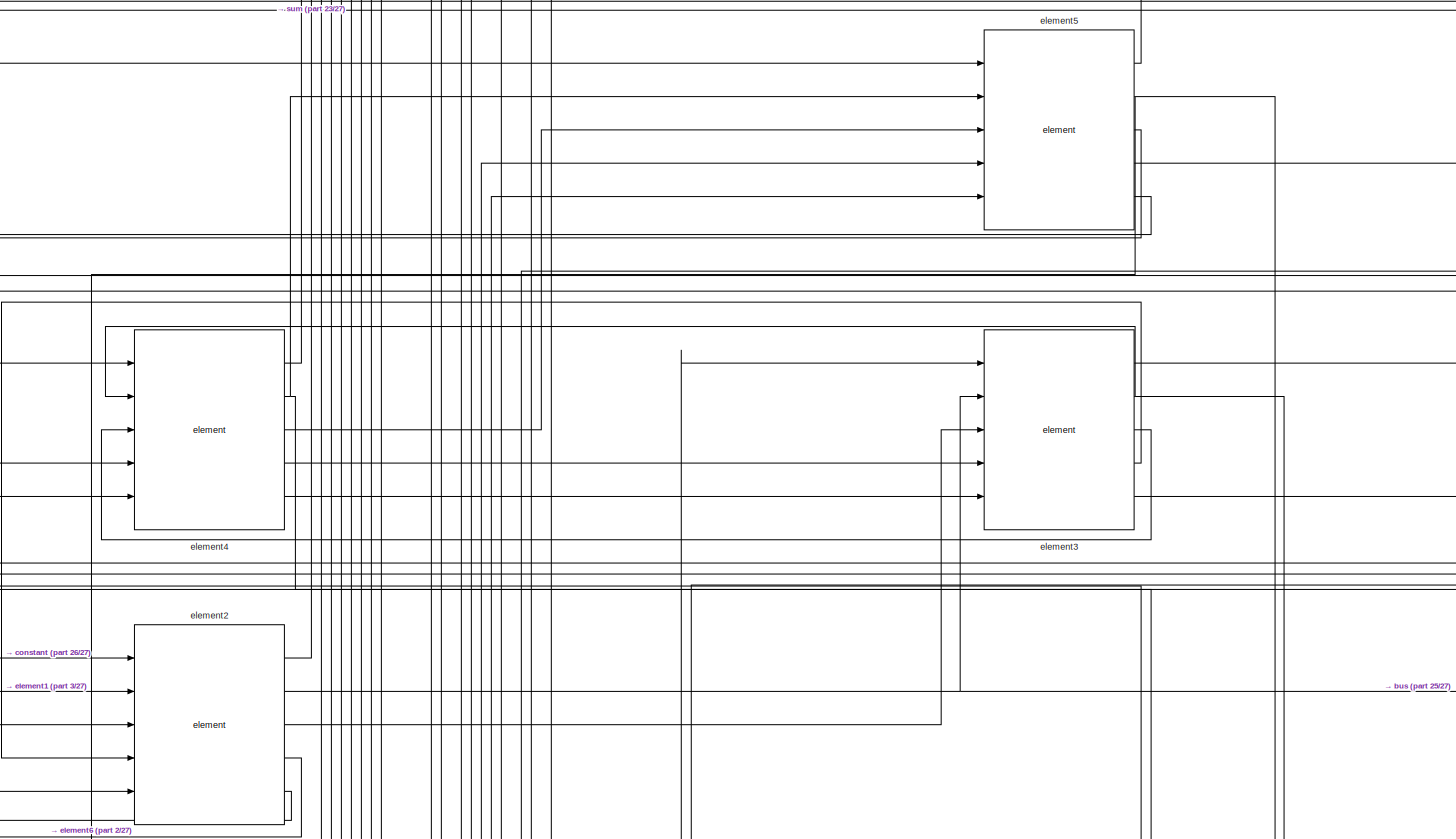
[diagram: root canvas - part 1/27, top center region]
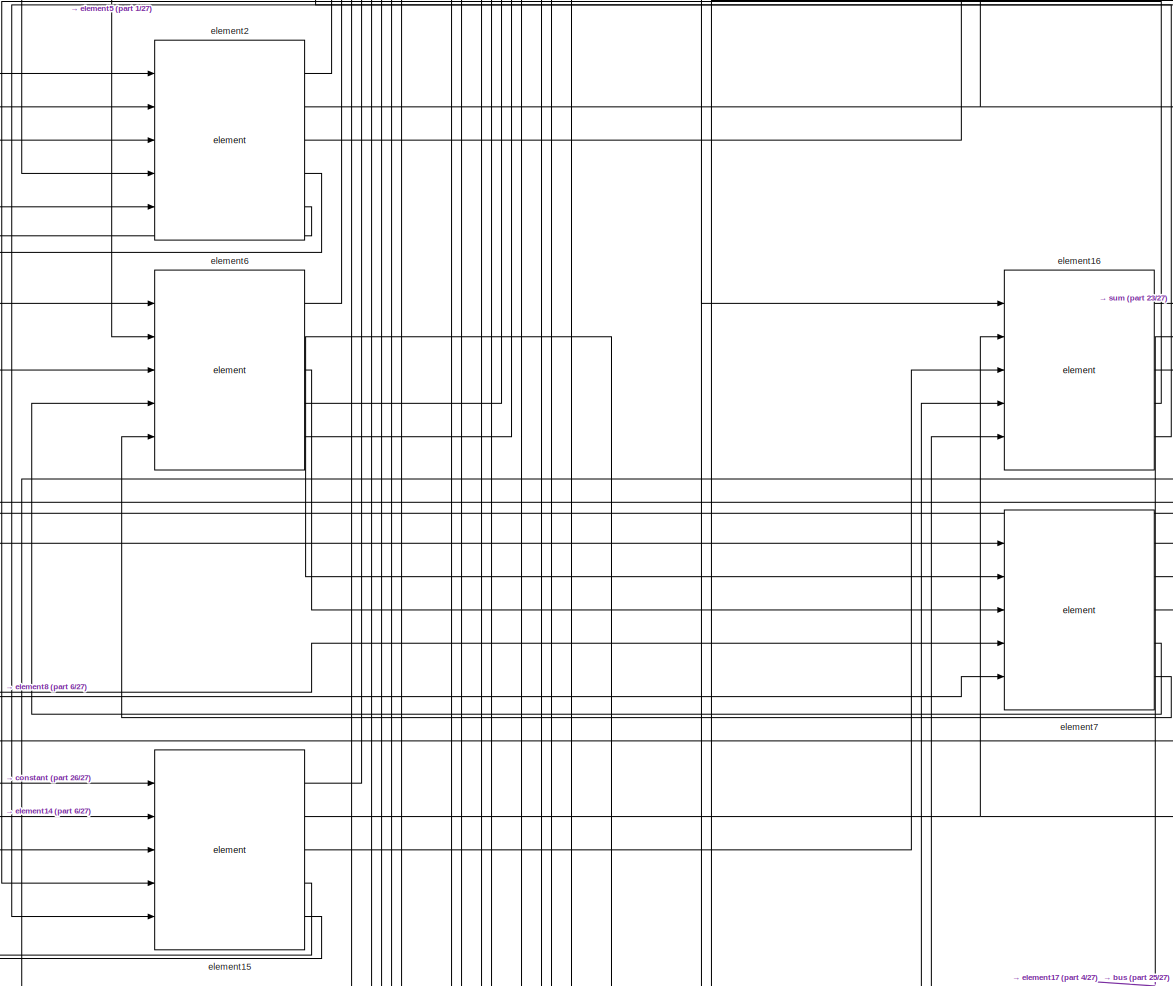
[diagram: root canvas - part 2/27, top center region]
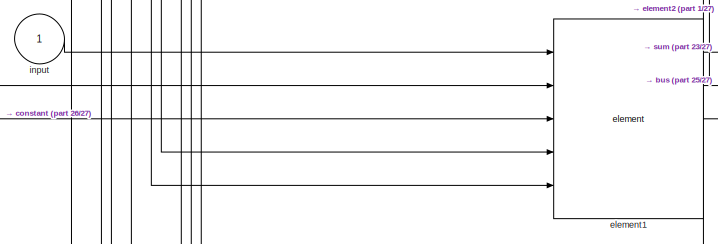
[diagram: root canvas - part 3/27, top left region]
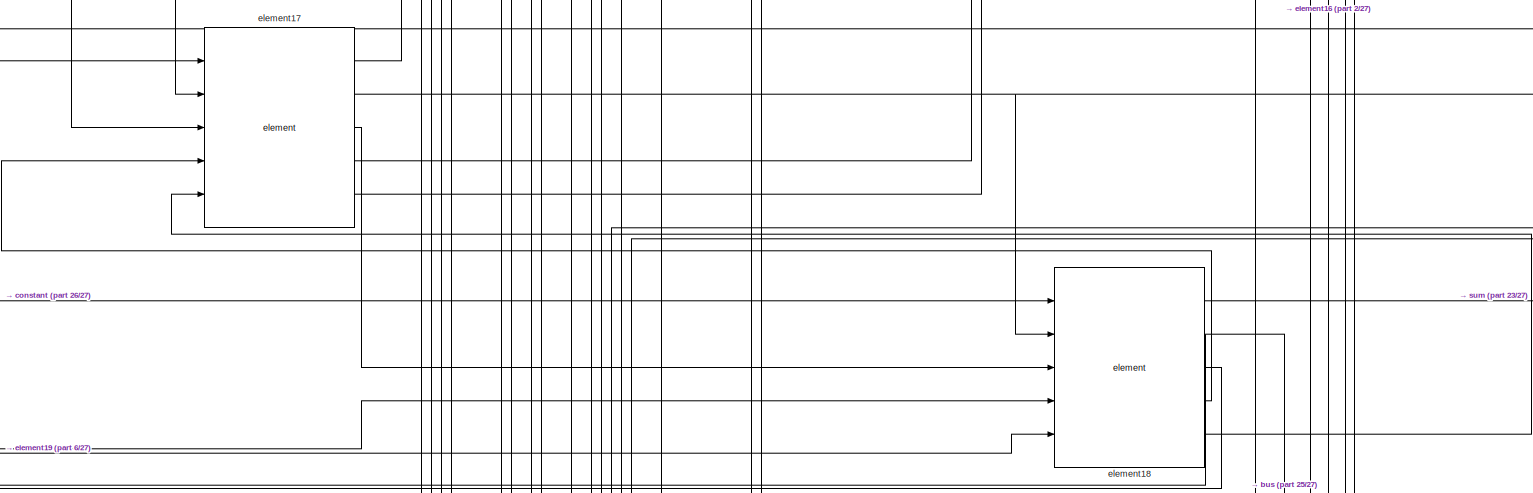
[diagram: root canvas - part 4/27, top center region]
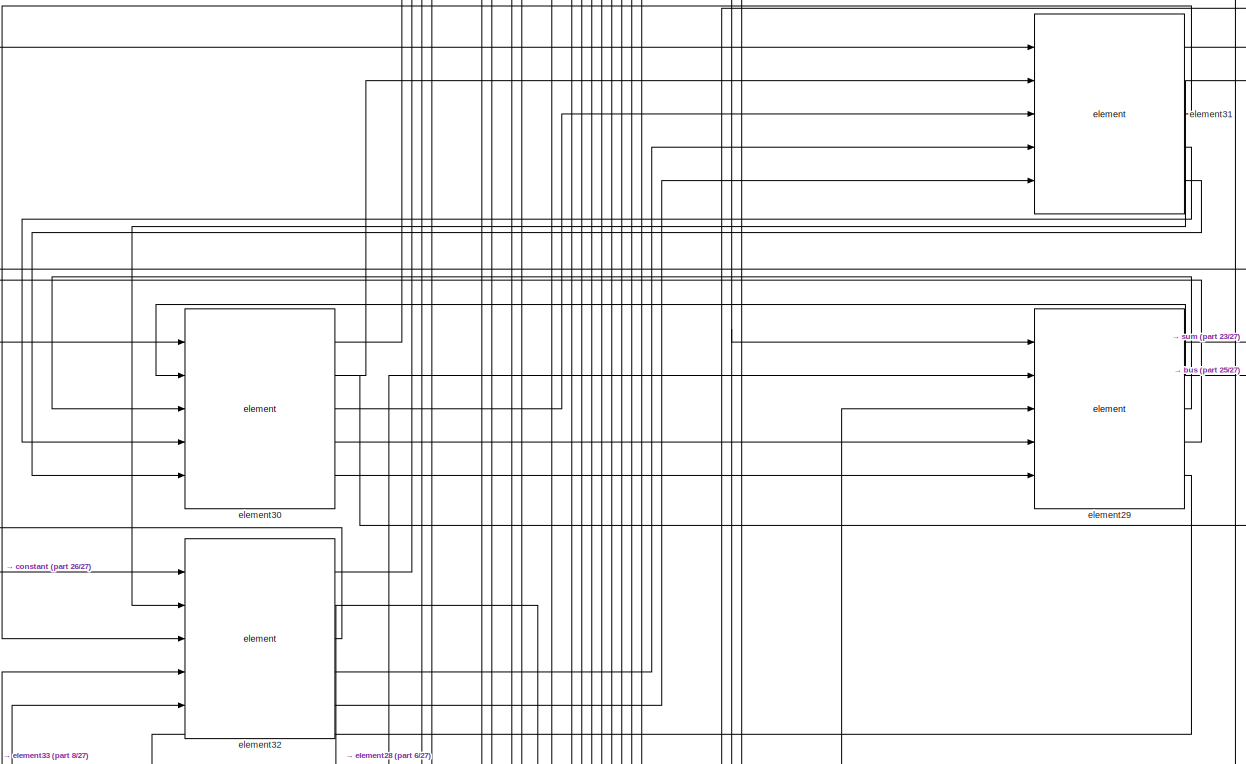
[diagram: root canvas - part 5/27, top center region]
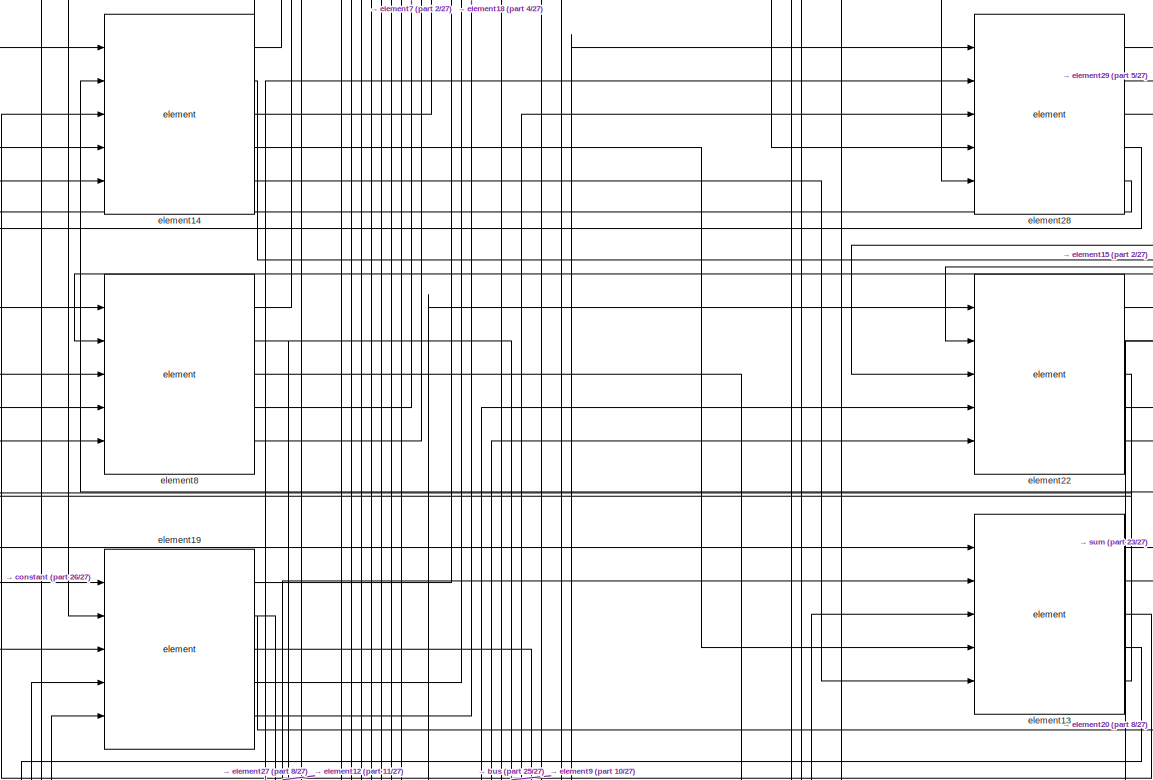
[diagram: root canvas - part 6/27, top center region]
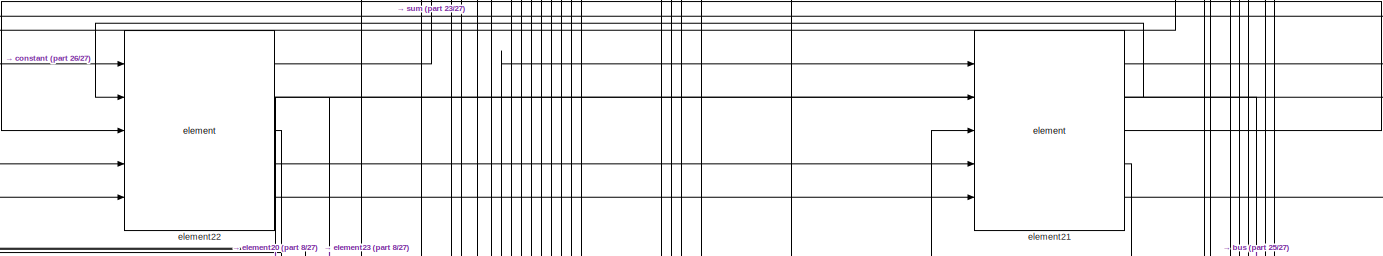
[diagram: root canvas - part 7/27, top center region]
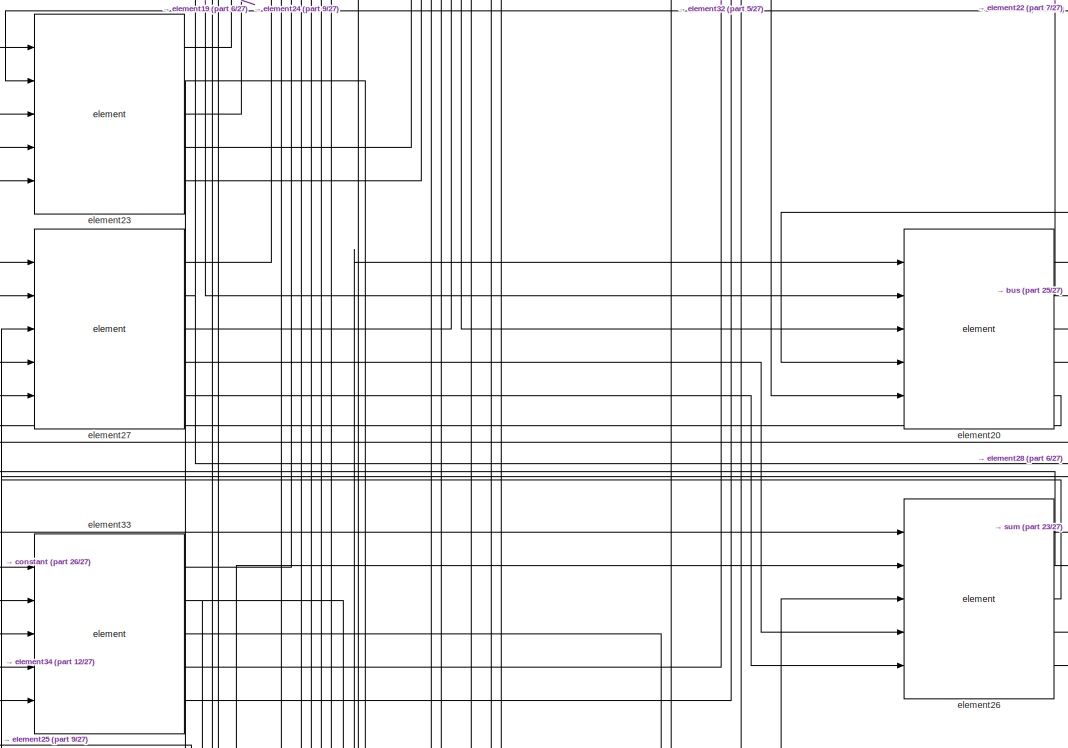
[diagram: root canvas - part 8/27, central region]
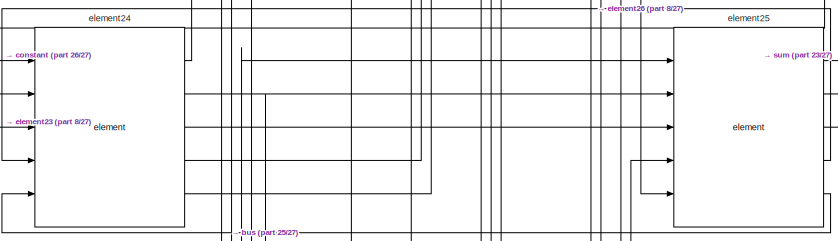
[diagram: root canvas - part 9/27, middle left region]
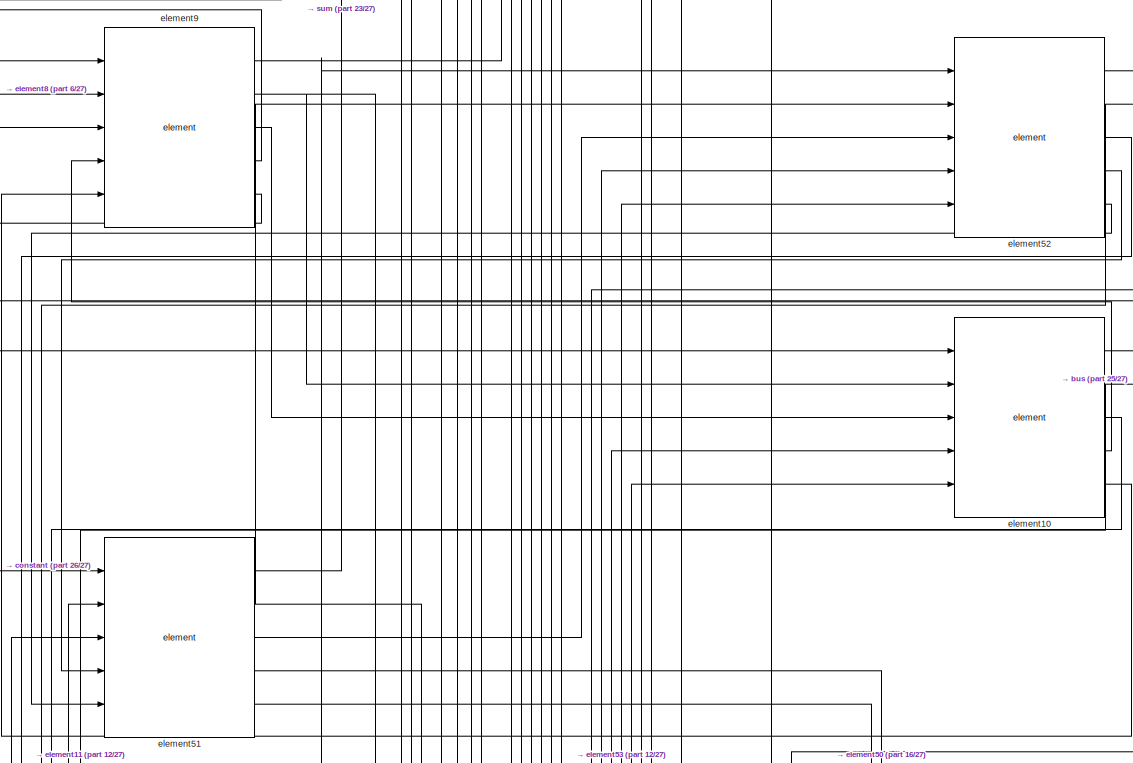
[diagram: root canvas - part 10/27, central region]
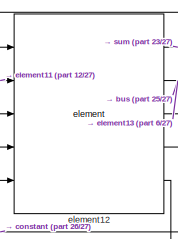
[diagram: root canvas - part 11/27, central region]
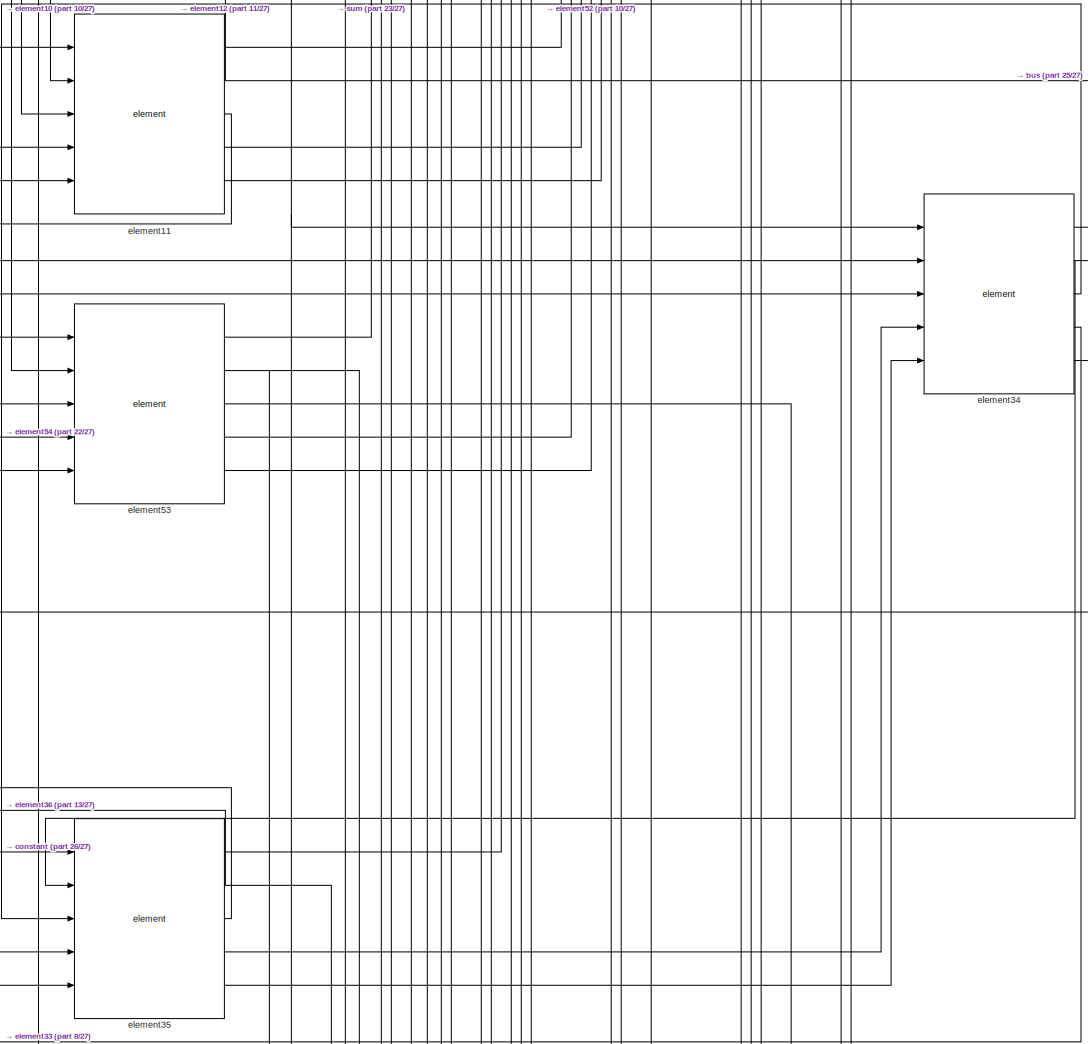
[diagram: root canvas - part 12/27, central region]
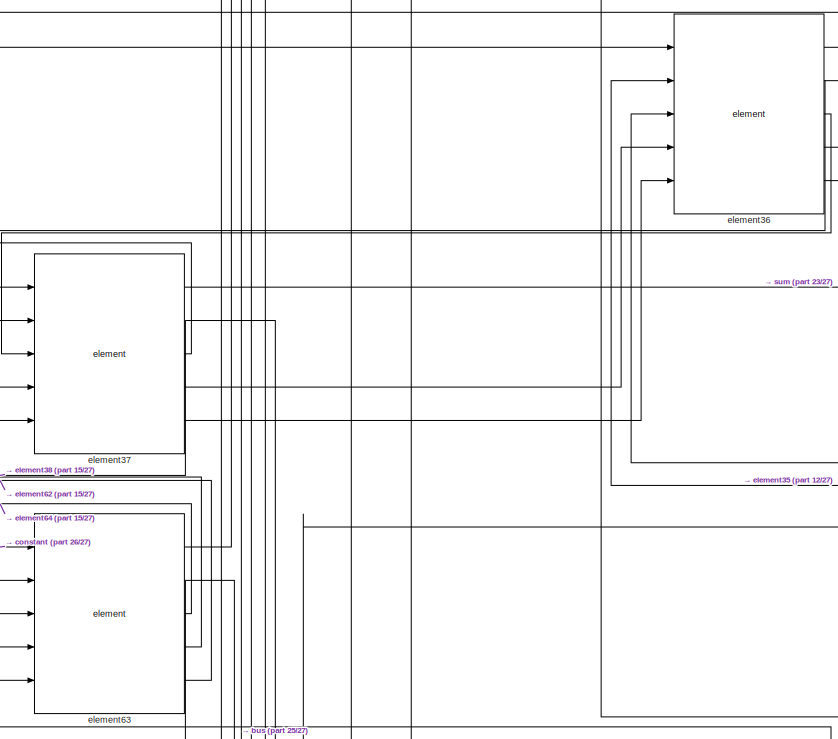
[diagram: root canvas - part 13/27, middle left region]
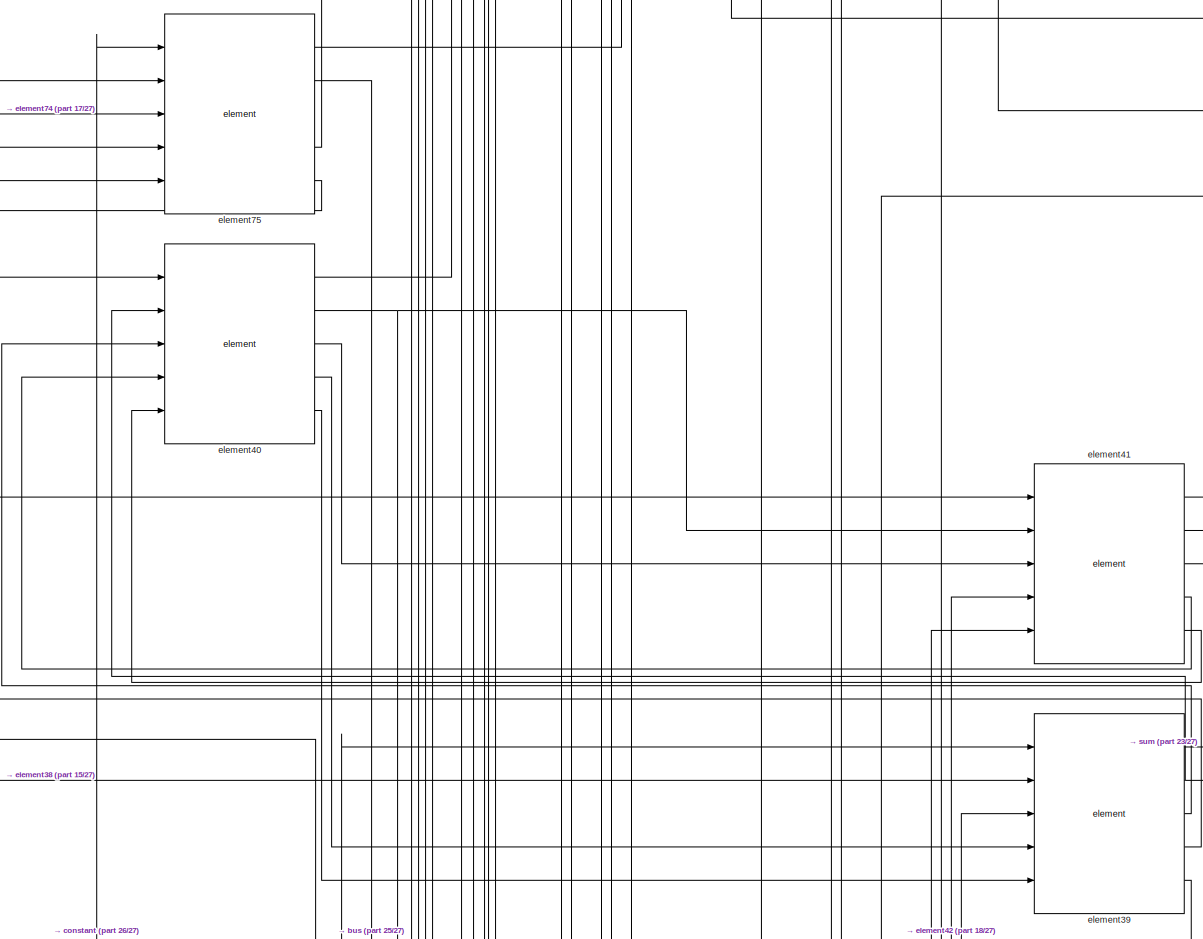
[diagram: root canvas - part 14/27, central region]
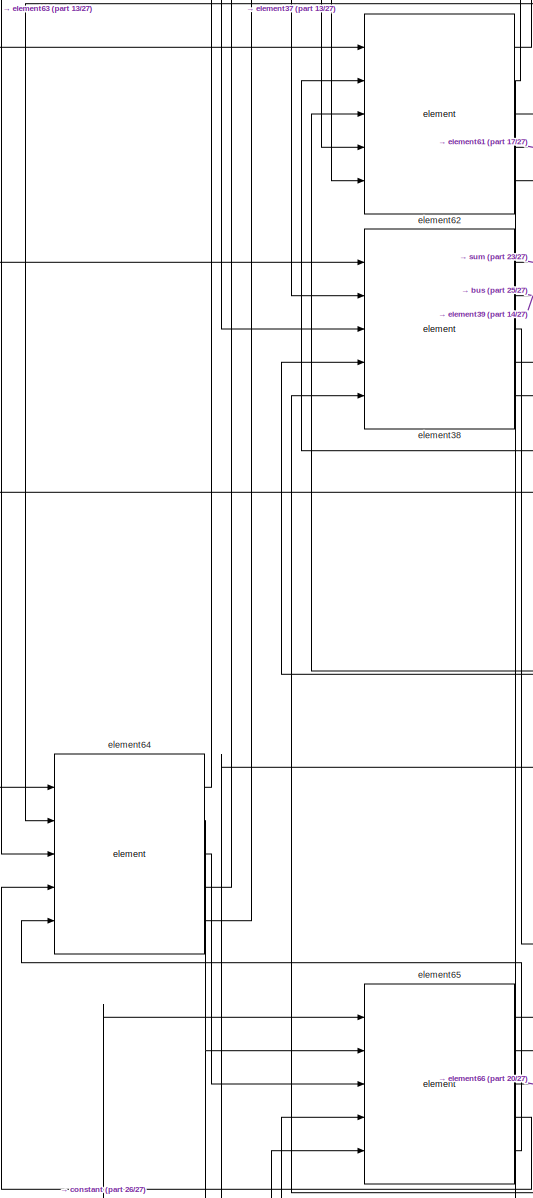
[diagram: root canvas - part 15/27, middle left region]
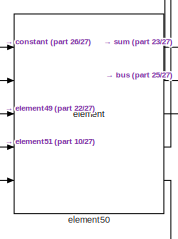
[diagram: root canvas - part 16/27, middle right region]
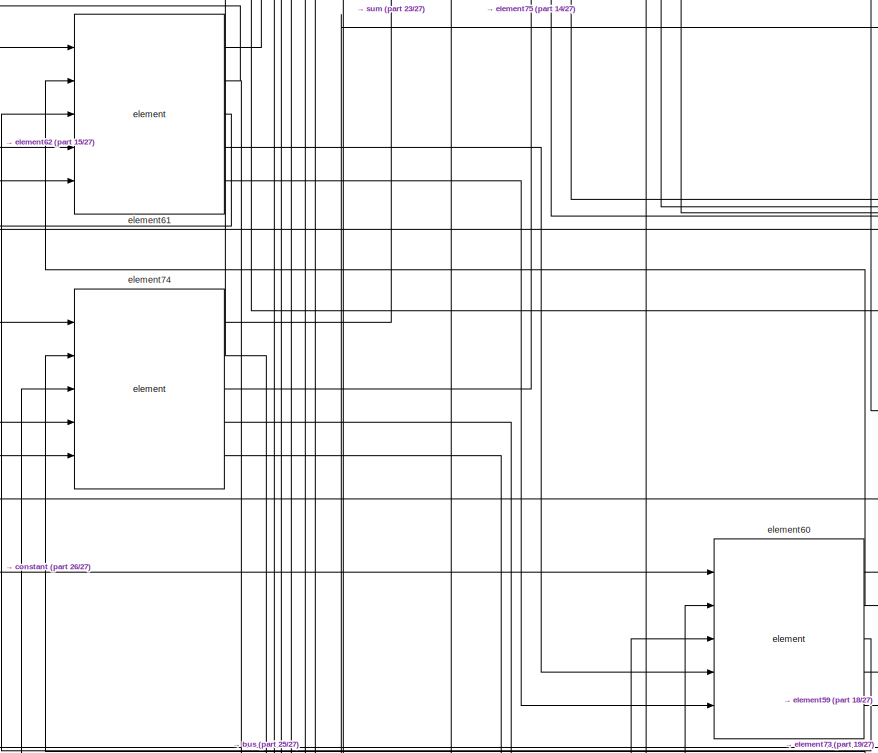
[diagram: root canvas - part 17/27, middle left region]
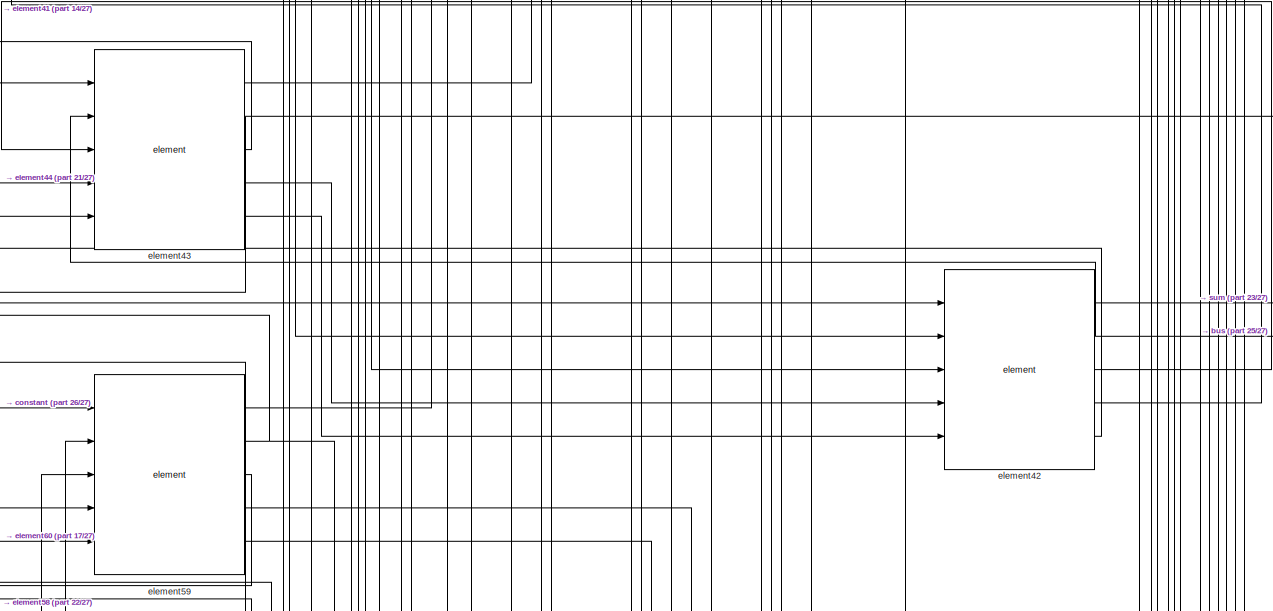
[diagram: root canvas - part 18/27, central region]
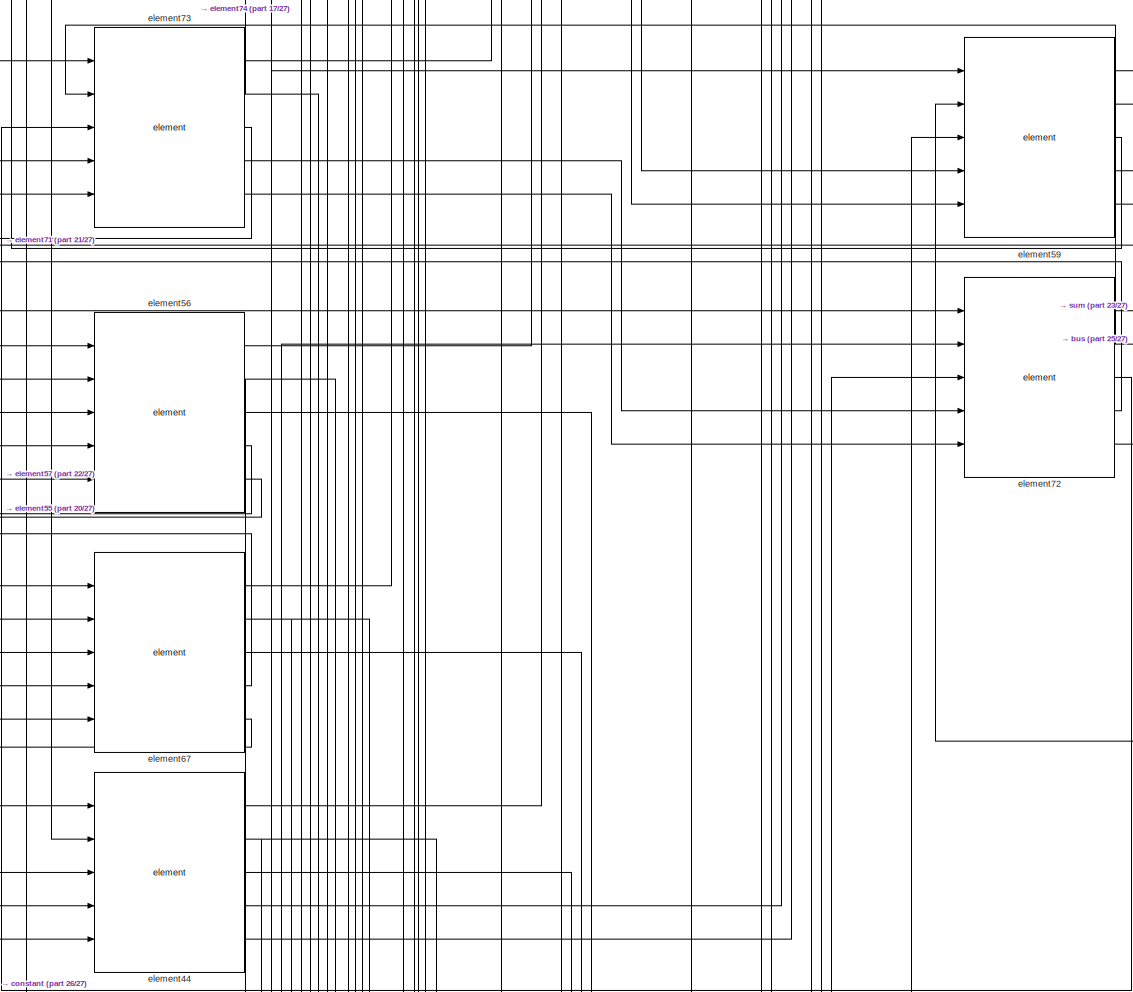
[diagram: root canvas - part 19/27, bottom center region]
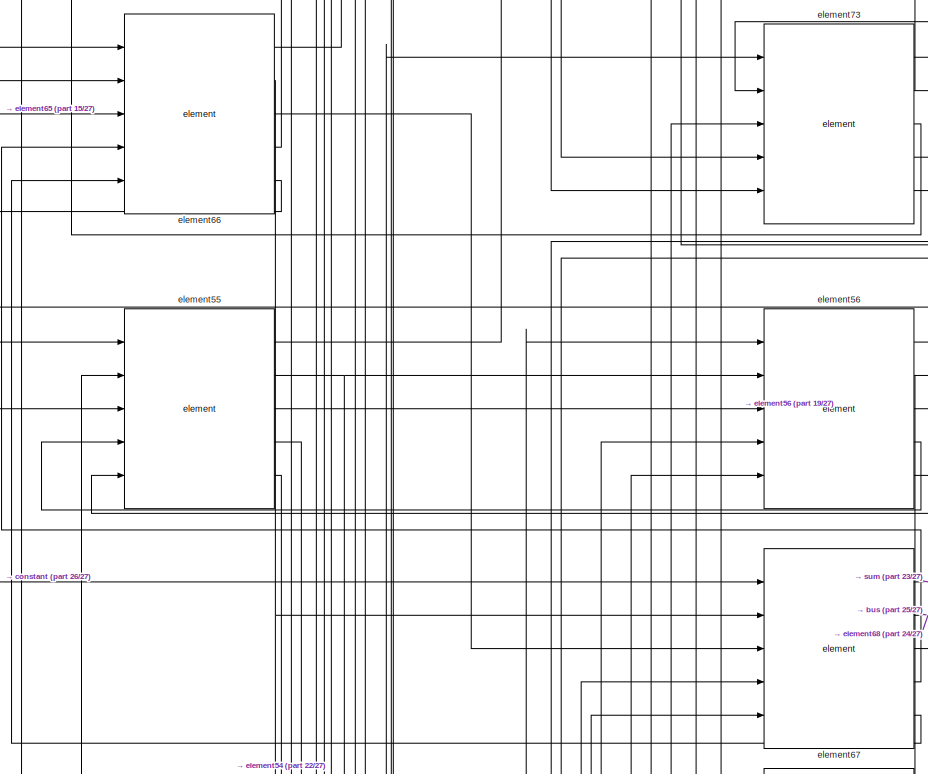
[diagram: root canvas - part 20/27, bottom left region]
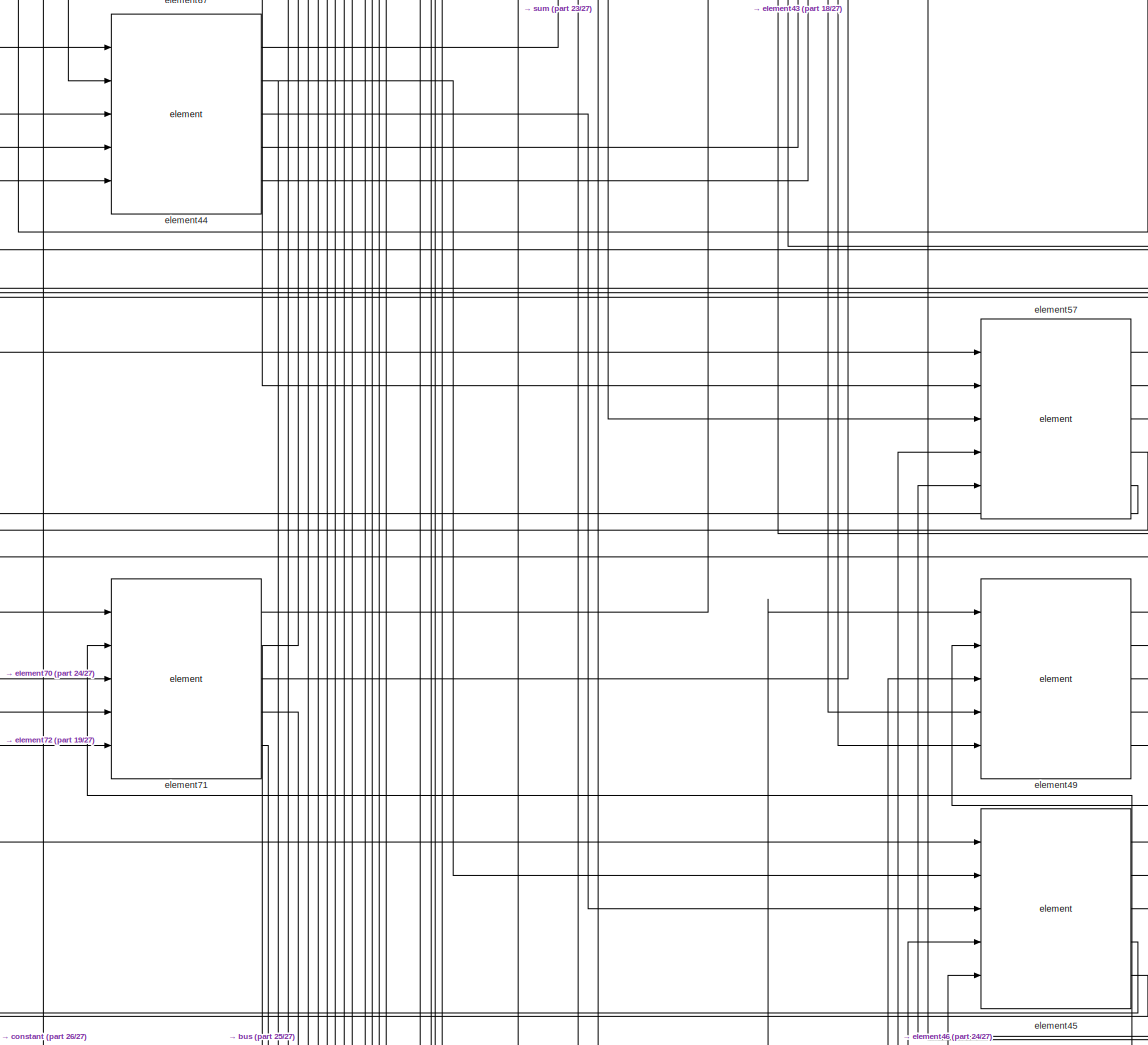
[diagram: root canvas - part 21/27, bottom center region]
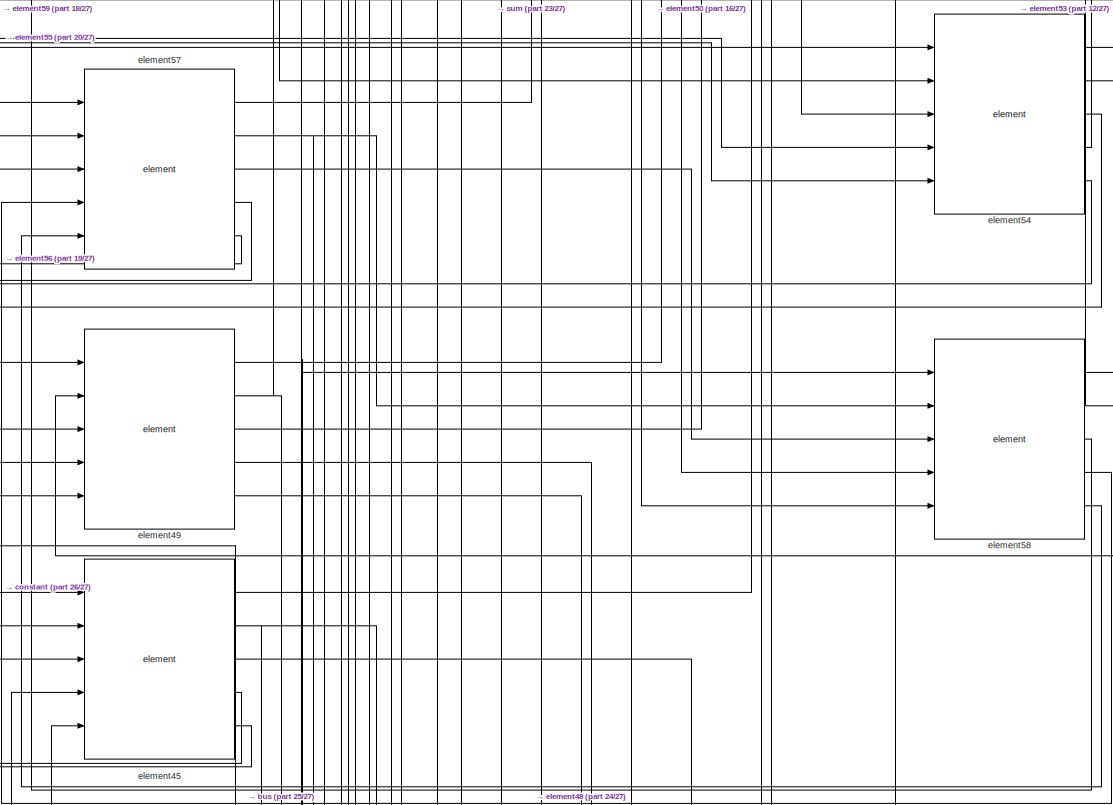
[diagram: root canvas - part 22/27, bottom center region]
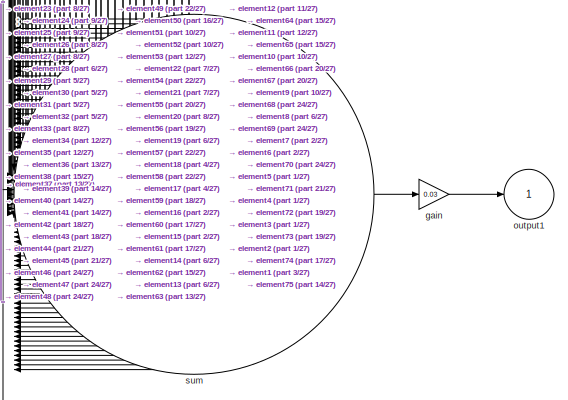
[diagram: root canvas - part 23/27, bottom right region]
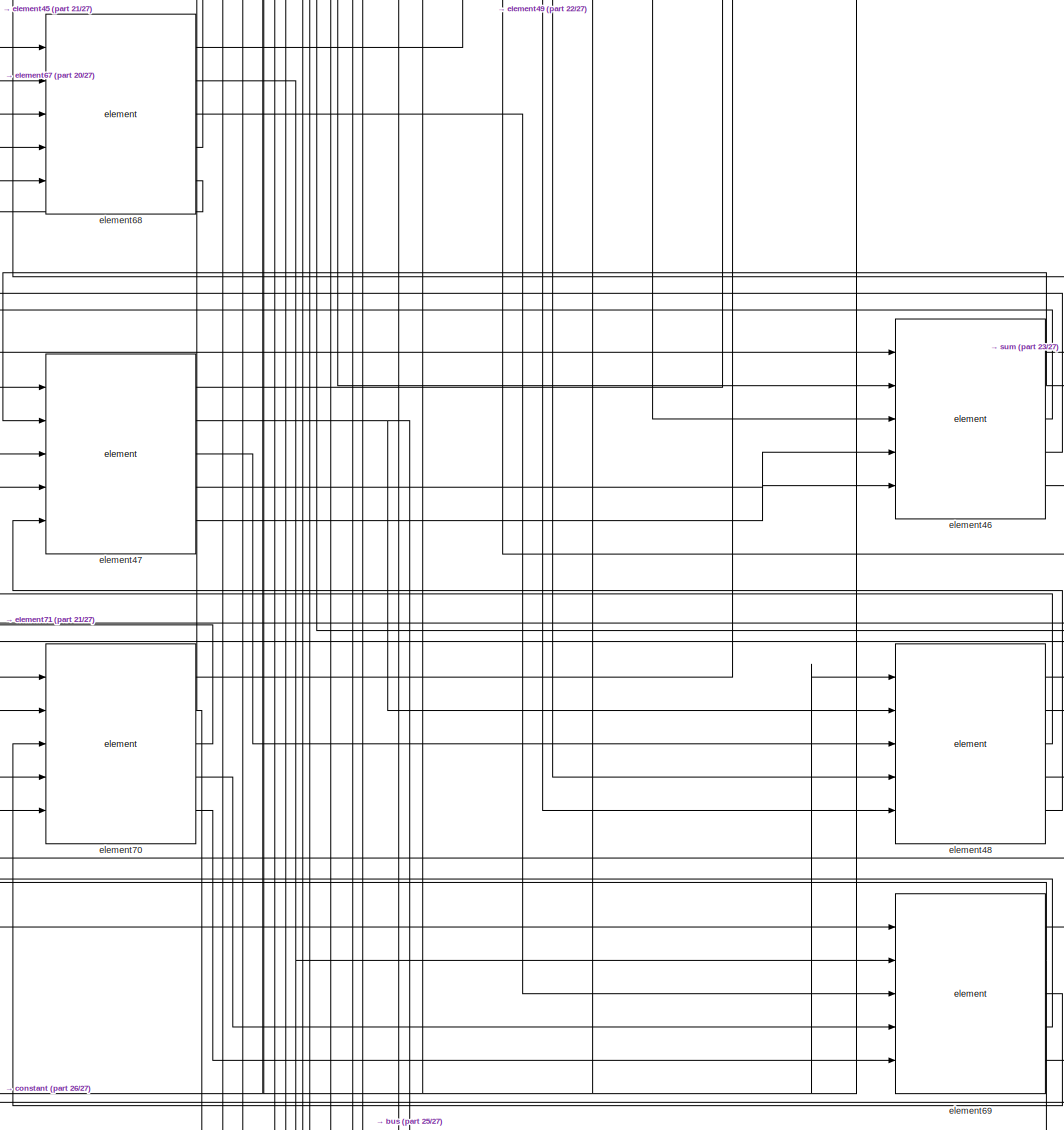
[diagram: root canvas - part 24/27, bottom center region]
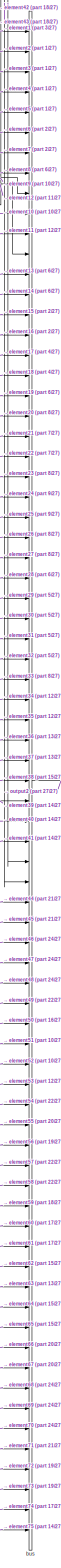
[diagram: root canvas - part 25/27, bottom right region]
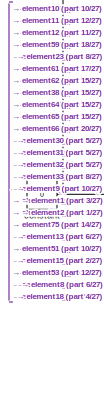
[diagram: root canvas - part 26/27, bottom left region]
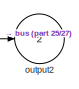
[diagram: root canvas - part 27/27, bottom right region]
MODEL slx_d20dbebf6b95
KIND model
CONFIG AbsTol = auto
CONFIG EnableMultiTasking = off
CONFIG FixedStep = auto
CONFIG MaxStep = auto
CONFIG MinStep = auto
CONFIG RelTol = 1e-3
CONFIG SampleTimeConstraint = Unconstrained
CONFIG SolverName = ode23t
CONFIG StartTime = 0.0
CONFIG StopTime = 10.0
BLOCK [BusCreator] bus
  DisplayOption = bar
  InheritFromInputs = on
  Inputs = 75
  Ports = [75, 1]
BLOCK [Constant] constant
  Value = 0
BLOCK [Reference] element1  REF=lib_beam/element  (lib defined in slx_f71b63bb8612)
  Ports = [5, 5]
  SourceBlock = lib_beam/element
BLOCK [Reference] element10  REF=lib_beam/element  (lib defined in slx_f71b63bb8612)
  Ports = [5, 5]
  SourceBlock = lib_beam/element
BLOCK [Reference] element11  REF=lib_beam/element  (lib defined in slx_f71b63bb8612)
  Ports = [5, 5]
  SourceBlock = lib_beam/element
BLOCK [Reference] element12  REF=lib_beam/element  (lib defined in slx_f71b63bb8612)
  Ports = [5, 5]
  SourceBlock = lib_beam/element
BLOCK [Reference] element13  REF=lib_beam/element  (lib defined in slx_f71b63bb8612)
  Ports = [5, 5]
  SourceBlock = lib_beam/element
BLOCK [Reference] element14  REF=lib_beam/element  (lib defined in slx_f71b63bb8612)
  Ports = [5, 5]
  SourceBlock = lib_beam/element
BLOCK [Reference] element15  REF=lib_beam/element  (lib defined in slx_f71b63bb8612)
  Ports = [5, 5]
  SourceBlock = lib_beam/element
BLOCK [Reference] element16  REF=lib_beam/element  (lib defined in slx_f71b63bb8612)
  Ports = [5, 5]
  SourceBlock = lib_beam/element
BLOCK [Reference] element17  REF=lib_beam/element  (lib defined in slx_f71b63bb8612)
  Ports = [5, 5]
  SourceBlock = lib_beam/element
BLOCK [Reference] element18  REF=lib_beam/element  (lib defined in slx_f71b63bb8612)
  Ports = [5, 5]
  SourceBlock = lib_beam/element
BLOCK [Reference] element19  REF=lib_beam/element  (lib defined in slx_f71b63bb8612)
  Ports = [5, 5]
  SourceBlock = lib_beam/element
BLOCK [Reference] element2  REF=lib_beam/element  (lib defined in slx_f71b63bb8612)
  Ports = [5, 5]
  SourceBlock = lib_beam/element
BLOCK [Reference] element20  REF=lib_beam/element  (lib defined in slx_f71b63bb8612)
  Ports = [5, 5]
  SourceBlock = lib_beam/element
BLOCK [Reference] element21  REF=lib_beam/element  (lib defined in slx_f71b63bb8612)
  Ports = [5, 5]
  SourceBlock = lib_beam/element
BLOCK [Reference] element22  REF=lib_beam/element  (lib defined in slx_f71b63bb8612)
  Ports = [5, 5]
  SourceBlock = lib_beam/element
BLOCK [Reference] element23  REF=lib_beam/element  (lib defined in slx_f71b63bb8612)
  Ports = [5, 5]
  SourceBlock = lib_beam/element
BLOCK [Reference] element24  REF=lib_beam/element  (lib defined in slx_f71b63bb8612)
  Ports = [5, 5]
  SourceBlock = lib_beam/element
BLOCK [Reference] element25  REF=lib_beam/element  (lib defined in slx_f71b63bb8612)
  Ports = [5, 5]
  SourceBlock = lib_beam/element
BLOCK [Reference] element26  REF=lib_beam/element  (lib defined in slx_f71b63bb8612)
  Ports = [5, 5]
  SourceBlock = lib_beam/element
BLOCK [Reference] element27  REF=lib_beam/element  (lib defined in slx_f71b63bb8612)
  Ports = [5, 5]
  SourceBlock = lib_beam/element
BLOCK [Reference] element28  REF=lib_beam/element  (lib defined in slx_f71b63bb8612)
  Ports = [5, 5]
  SourceBlock = lib_beam/element
BLOCK [Reference] element29  REF=lib_beam/element  (lib defined in slx_f71b63bb8612)
  Ports = [5, 5]
  SourceBlock = lib_beam/element
BLOCK [Reference] element3  REF=lib_beam/element  (lib defined in slx_f71b63bb8612)
  Ports = [5, 5]
  SourceBlock = lib_beam/element
BLOCK [Reference] element30  REF=lib_beam/element  (lib defined in slx_f71b63bb8612)
  Ports = [5, 5]
  SourceBlock = lib_beam/element
BLOCK [Reference] element31  REF=lib_beam/element  (lib defined in slx_f71b63bb8612)
  Ports = [5, 5]
  SourceBlock = lib_beam/element
BLOCK [Reference] element32  REF=lib_beam/element  (lib defined in slx_f71b63bb8612)
  Ports = [5, 5]
  SourceBlock = lib_beam/element
BLOCK [Reference] element33  REF=lib_beam/element  (lib defined in slx_f71b63bb8612)
  Ports = [5, 5]
  SourceBlock = lib_beam/element
BLOCK [Reference] element34  REF=lib_beam/element  (lib defined in slx_f71b63bb8612)
  Ports = [5, 5]
  SourceBlock = lib_beam/element
BLOCK [Reference] element35  REF=lib_beam/element  (lib defined in slx_f71b63bb8612)
  Ports = [5, 5]
  SourceBlock = lib_beam/element
BLOCK [Reference] element36  REF=lib_beam/element  (lib defined in slx_f71b63bb8612)
  Ports = [5, 5]
  SourceBlock = lib_beam/element
BLOCK [Reference] element37  REF=lib_beam/element  (lib defined in slx_f71b63bb8612)
  Ports = [5, 5]
  SourceBlock = lib_beam/element
BLOCK [Reference] element38  REF=lib_beam/element  (lib defined in slx_f71b63bb8612)
  Ports = [5, 5]
  SourceBlock = lib_beam/element
BLOCK [Reference] element39  REF=lib_beam/element  (lib defined in slx_f71b63bb8612)
  Ports = [5, 5]
  SourceBlock = lib_beam/element
BLOCK [Reference] element4  REF=lib_beam/element  (lib defined in slx_f71b63bb8612)
  Ports = [5, 5]
  SourceBlock = lib_beam/element
BLOCK [Reference] element40  REF=lib_beam/element  (lib defined in slx_f71b63bb8612)
  Ports = [5, 5]
  SourceBlock = lib_beam/element
BLOCK [Reference] element41  REF=lib_beam/element  (lib defined in slx_f71b63bb8612)
  Ports = [5, 5]
  SourceBlock = lib_beam/element
BLOCK [Reference] element42  REF=lib_beam/element  (lib defined in slx_f71b63bb8612)
  Ports = [5, 5]
  SourceBlock = lib_beam/element
BLOCK [Reference] element43  REF=lib_beam/element  (lib defined in slx_f71b63bb8612)
  Ports = [5, 5]
  SourceBlock = lib_beam/element
BLOCK [Reference] element44  REF=lib_beam/element  (lib defined in slx_f71b63bb8612)
  Ports = [5, 5]
  SourceBlock = lib_beam/element
BLOCK [Reference] element45  REF=lib_beam/element  (lib defined in slx_f71b63bb8612)
  Ports = [5, 5]
  SourceBlock = lib_beam/element
BLOCK [Reference] element46  REF=lib_beam/element  (lib defined in slx_f71b63bb8612)
  Ports = [5, 5]
  SourceBlock = lib_beam/element
BLOCK [Reference] element47  REF=lib_beam/element  (lib defined in slx_f71b63bb8612)
  Ports = [5, 5]
  SourceBlock = lib_beam/element
BLOCK [Reference] element48  REF=lib_beam/element  (lib defined in slx_f71b63bb8612)
  Ports = [5, 5]
  SourceBlock = lib_beam/element
BLOCK [Reference] element49  REF=lib_beam/element  (lib defined in slx_f71b63bb8612)
  Ports = [5, 5]
  SourceBlock = lib_beam/element
BLOCK [Reference] element5  REF=lib_beam/element  (lib defined in slx_f71b63bb8612)
  Ports = [5, 5]
  SourceBlock = lib_beam/element
BLOCK [Reference] element50  REF=lib_beam/element  (lib defined in slx_f71b63bb8612)
  Ports = [5, 5]
  SourceBlock = lib_beam/element
BLOCK [Reference] element51  REF=lib_beam/element  (lib defined in slx_f71b63bb8612)
  Ports = [5, 5]
  SourceBlock = lib_beam/element
BLOCK [Reference] element52  REF=lib_beam/element  (lib defined in slx_f71b63bb8612)
  Ports = [5, 5]
  SourceBlock = lib_beam/element
BLOCK [Reference] element53  REF=lib_beam/element  (lib defined in slx_f71b63bb8612)
  Ports = [5, 5]
  SourceBlock = lib_beam/element
BLOCK [Reference] element54  REF=lib_beam/element  (lib defined in slx_f71b63bb8612)
  Ports = [5, 5]
  SourceBlock = lib_beam/element
BLOCK [Reference] element55  REF=lib_beam/element  (lib defined in slx_f71b63bb8612)
  Ports = [5, 5]
  SourceBlock = lib_beam/element
BLOCK [Reference] element56  REF=lib_beam/element  (lib defined in slx_f71b63bb8612)
  Ports = [5, 5]
  SourceBlock = lib_beam/element
BLOCK [Reference] element57  REF=lib_beam/element  (lib defined in slx_f71b63bb8612)
  Ports = [5, 5]
  SourceBlock = lib_beam/element
BLOCK [Reference] element58  REF=lib_beam/element  (lib defined in slx_f71b63bb8612)
  Ports = [5, 5]
  SourceBlock = lib_beam/element
BLOCK [Reference] element59  REF=lib_beam/element  (lib defined in slx_f71b63bb8612)
  Ports = [5, 5]
  SourceBlock = lib_beam/element
BLOCK [Reference] element6  REF=lib_beam/element  (lib defined in slx_f71b63bb8612)
  Ports = [5, 5]
  SourceBlock = lib_beam/element
BLOCK [Reference] element60  REF=lib_beam/element  (lib defined in slx_f71b63bb8612)
  Ports = [5, 5]
  SourceBlock = lib_beam/element
BLOCK [Reference] element61  REF=lib_beam/element  (lib defined in slx_f71b63bb8612)
  Ports = [5, 5]
  SourceBlock = lib_beam/element
BLOCK [Reference] element62  REF=lib_beam/element  (lib defined in slx_f71b63bb8612)
  Ports = [5, 5]
  SourceBlock = lib_beam/element
BLOCK [Reference] element63  REF=lib_beam/element  (lib defined in slx_f71b63bb8612)
  Ports = [5, 5]
  SourceBlock = lib_beam/element
BLOCK [Reference] element64  REF=lib_beam/element  (lib defined in slx_f71b63bb8612)
  Ports = [5, 5]
  SourceBlock = lib_beam/element
BLOCK [Reference] element65  REF=lib_beam/element  (lib defined in slx_f71b63bb8612)
  Ports = [5, 5]
  SourceBlock = lib_beam/element
BLOCK [Reference] element66  REF=lib_beam/element  (lib defined in slx_f71b63bb8612)
  Ports = [5, 5]
  SourceBlock = lib_beam/element
BLOCK [Reference] element67  REF=lib_beam/element  (lib defined in slx_f71b63bb8612)
  Ports = [5, 5]
  SourceBlock = lib_beam/element
BLOCK [Reference] element68  REF=lib_beam/element  (lib defined in slx_f71b63bb8612)
  Ports = [5, 5]
  SourceBlock = lib_beam/element
BLOCK [Reference] element69  REF=lib_beam/element  (lib defined in slx_f71b63bb8612)
  Ports = [5, 5]
  SourceBlock = lib_beam/element
BLOCK [Reference] element7  REF=lib_beam/element  (lib defined in slx_f71b63bb8612)
  Ports = [5, 5]
  SourceBlock = lib_beam/element
BLOCK [Reference] element70  REF=lib_beam/element  (lib defined in slx_f71b63bb8612)
  Ports = [5, 5]
  SourceBlock = lib_beam/element
BLOCK [Reference] element71  REF=lib_beam/element  (lib defined in slx_f71b63bb8612)
  Ports = [5, 5]
  SourceBlock = lib_beam/element
BLOCK [Reference] element72  REF=lib_beam/element  (lib defined in slx_f71b63bb8612)
  Ports = [5, 5]
  SourceBlock = lib_beam/element
BLOCK [Reference] element73  REF=lib_beam/element  (lib defined in slx_f71b63bb8612)
  Ports = [5, 5]
  SourceBlock = lib_beam/element
BLOCK [Reference] element74  REF=lib_beam/element  (lib defined in slx_f71b63bb8612)
  Ports = [5, 5]
  SourceBlock = lib_beam/element
BLOCK [Reference] element75  REF=lib_beam/element  (lib defined in slx_f71b63bb8612)
  Ports = [5, 5]
  SourceBlock = lib_beam/element
BLOCK [Reference] element8  REF=lib_beam/element  (lib defined in slx_f71b63bb8612)
  Ports = [5, 5]
  SourceBlock = lib_beam/element
BLOCK [Reference] element9  REF=lib_beam/element  (lib defined in slx_f71b63bb8612)
  Ports = [5, 5]
  SourceBlock = lib_beam/element
BLOCK [Gain] gain
  Gain = 0.03
BLOCK [Inport] input
BLOCK [Outport] output1
BLOCK [Outport] output2
  Port = 2
BLOCK [Sum] sum
  Inputs = 75
  Ports = [75, 1]
LINE bus:1 -> output2:1
NET constant:1 -> element10:1, element11:1, element12:1, element13:1, element14:1, element15:1, element16:1, element17:1, element18:1, element19:1, element1:2, element1:3, element20:1, element21:1, element22:1, element23:1, element24:1, element25:1, element26:1, element27:1, element28:1, element29:1, element2:1, element30:1, element31:1, element32:1, element33:1, element34:1, element35:1, element36:1, element37:1, element38:1, element39:1, element3:1, element40:1, element41:1, element42:1, element43:1, element44:1, element45:1, element46:1, element47:1, element48:1, element49:1, element4:1, element50:1, element51:1, element52:1, element53:1, element54:1, element55:1, element56:1, element57:1, element58:1, element59:1, element5:1, element60:1, element61:1, element62:1, element63:1, element64:1, element65:1, element66:1, element67:1, element68:1, element69:1, element6:1, element70:1, element71:1, element72:1, element73:1, element74:1, element75:1, element75:4, element75:5, element7:1, element8:1, element9:1
LINE element10:1 -> sum:10
NET element10:2 -> bus:10, element11:2
LINE element10:3 -> element11:3
LINE element10:4 -> element9:4
LINE element10:5 -> element9:5
LINE element11:1 -> sum:11
NET element11:2 -> bus:11, element12:2
LINE element11:3 -> element12:3
LINE element11:4 -> element10:4
LINE element11:5 -> element10:5
LINE element12:1 -> sum:12
NET element12:2 -> bus:12, element13:2
LINE element12:3 -> element13:3
LINE element12:4 -> element11:4
LINE element12:5 -> element11:5
LINE element13:1 -> sum:13
NET element13:2 -> bus:13, element14:2
LINE element13:3 -> element14:3
LINE element13:4 -> element12:4
LINE element13:5 -> element12:5
LINE element14:1 -> sum:14
NET element14:2 -> bus:14, element15:2
LINE element14:3 -> element15:3
LINE element14:4 -> element13:4
LINE element14:5 -> element13:5
LINE element15:1 -> sum:15
NET element15:2 -> bus:15, element16:2
LINE element15:3 -> element16:3
LINE element15:4 -> element14:4
LINE element15:5 -> element14:5
LINE element16:1 -> sum:16
NET element16:2 -> bus:16, element17:2
LINE element16:3 -> element17:3
LINE element16:4 -> element15:4
LINE element16:5 -> element15:5
LINE element17:1 -> sum:17
NET element17:2 -> bus:17, element18:2
LINE element17:3 -> element18:3
LINE element17:4 -> element16:4
LINE element17:5 -> element16:5
LINE element18:1 -> sum:18
NET element18:2 -> bus:18, element19:2
LINE element18:3 -> element19:3
LINE element18:4 -> element17:4
LINE element18:5 -> element17:5
LINE element19:1 -> sum:19
NET element19:2 -> bus:19, element20:2
LINE element19:3 -> element20:3
LINE element19:4 -> element18:4
LINE element19:5 -> element18:5
LINE element1:1 -> sum:1
NET element1:2 -> bus:1, element2:2
LINE element1:3 -> element2:3
LINE element20:1 -> sum:20
NET element20:2 -> bus:20, element21:2
LINE element20:3 -> element21:3
LINE element20:4 -> element19:4
LINE element20:5 -> element19:5
LINE element21:1 -> sum:21
NET element21:2 -> bus:21, element22:2
LINE element21:3 -> element22:3
LINE element21:4 -> element20:4
LINE element21:5 -> element20:5
LINE element22:1 -> sum:22
NET element22:2 -> bus:22, element23:2
LINE element22:3 -> element23:3
LINE element22:4 -> element21:4
LINE element22:5 -> element21:5
LINE element23:1 -> sum:23
NET element23:2 -> bus:23, element24:2
LINE element23:3 -> element24:3
LINE element23:4 -> element22:4
LINE element23:5 -> element22:5
LINE element24:1 -> sum:24
NET element24:2 -> bus:24, element25:2
LINE element24:3 -> element25:3
LINE element24:4 -> element23:4
LINE element24:5 -> element23:5
LINE element25:1 -> sum:25
NET element25:2 -> bus:25, element26:2
LINE element25:3 -> element26:3
LINE element25:4 -> element24:4
LINE element25:5 -> element24:5
LINE element26:1 -> sum:26
NET element26:2 -> bus:26, element27:2
LINE element26:3 -> element27:3
LINE element26:4 -> element25:4
LINE element26:5 -> element25:5
LINE element27:1 -> sum:27
NET element27:2 -> bus:27, element28:2
LINE element27:3 -> element28:3
LINE element27:4 -> element26:4
LINE element27:5 -> element26:5
LINE element28:1 -> sum:28
NET element28:2 -> bus:28, element29:2
LINE element28:3 -> element29:3
LINE element28:4 -> element27:4
LINE element28:5 -> element27:5
LINE element29:1 -> sum:29
NET element29:2 -> bus:29, element30:2
LINE element29:3 -> element30:3
LINE element29:4 -> element28:4
LINE element29:5 -> element28:5
LINE element2:1 -> sum:2
NET element2:2 -> bus:2, element3:2
LINE element2:3 -> element3:3
LINE element2:4 -> element1:4
LINE element2:5 -> element1:5
LINE element30:1 -> sum:30
NET element30:2 -> bus:30, element31:2
LINE element30:3 -> element31:3
LINE element30:4 -> element29:4
LINE element30:5 -> element29:5
LINE element31:1 -> sum:31
NET element31:2 -> bus:31, element32:2
LINE element31:3 -> element32:3
LINE element31:4 -> element30:4
LINE element31:5 -> element30:5
LINE element32:1 -> sum:32
NET element32:2 -> bus:32, element33:2
LINE element32:3 -> element33:3
LINE element32:4 -> element31:4
LINE element32:5 -> element31:5
LINE element33:1 -> sum:33
NET element33:2 -> bus:33, element34:2
LINE element33:3 -> element34:3
LINE element33:4 -> element32:4
LINE element33:5 -> element32:5
LINE element34:1 -> sum:34
NET element34:2 -> bus:34, element35:2
LINE element34:3 -> element35:3
LINE element34:4 -> element33:4
LINE element34:5 -> element33:5
LINE element35:1 -> sum:35
NET element35:2 -> bus:35, element36:2
LINE element35:3 -> element36:3
LINE element35:4 -> element34:4
LINE element35:5 -> element34:5
LINE element36:1 -> sum:36
NET element36:2 -> bus:36, element37:2
LINE element36:3 -> element37:3
LINE element36:4 -> element35:4
LINE element36:5 -> element35:5
LINE element37:1 -> sum:37
NET element37:2 -> bus:37, element38:2
LINE element37:3 -> element38:3
LINE element37:4 -> element36:4
LINE element37:5 -> element36:5
LINE element38:1 -> sum:38
NET element38:2 -> bus:38, element39:2
LINE element38:3 -> element39:3
LINE element38:4 -> element37:4
LINE element38:5 -> element37:5
LINE element39:1 -> sum:39
NET element39:2 -> bus:39, element40:2
LINE element39:3 -> element40:3
LINE element39:4 -> element38:4
LINE element39:5 -> element38:5
LINE element3:1 -> sum:3
NET element3:2 -> bus:3, element4:2
LINE element3:3 -> element4:3
LINE element3:4 -> element2:4
LINE element3:5 -> element2:5
LINE element40:1 -> sum:40
NET element40:2 -> bus:40, element41:2
LINE element40:3 -> element41:3
LINE element40:4 -> element39:4
LINE element40:5 -> element39:5
LINE element41:1 -> sum:41
NET element41:2 -> bus:41, element42:2
LINE element41:3 -> element42:3
LINE element41:4 -> element40:4
LINE element41:5 -> element40:5
LINE element42:1 -> sum:42
NET element42:2 -> bus:42, element43:2
LINE element42:3 -> element43:3
LINE element42:4 -> element41:4
LINE element42:5 -> element41:5
LINE element43:1 -> sum:43
NET element43:2 -> bus:43, element44:2
LINE element43:3 -> element44:3
LINE element43:4 -> element42:4
LINE element43:5 -> element42:5
LINE element44:1 -> sum:44
NET element44:2 -> bus:44, element45:2
LINE element44:3 -> element45:3
LINE element44:4 -> element43:4
LINE element44:5 -> element43:5
LINE element45:1 -> sum:45
NET element45:2 -> bus:45, element46:2
LINE element45:3 -> element46:3
LINE element45:4 -> element44:4
LINE element45:5 -> element44:5
LINE element46:1 -> sum:46
NET element46:2 -> bus:46, element47:2
LINE element46:3 -> element47:3
LINE element46:4 -> element45:4
LINE element46:5 -> element45:5
LINE element47:1 -> sum:47
NET element47:2 -> bus:47, element48:2
LINE element47:3 -> element48:3
LINE element47:4 -> element46:4
LINE element47:5 -> element46:5
LINE element48:1 -> sum:48
NET element48:2 -> bus:48, element49:2
LINE element48:3 -> element49:3
LINE element48:4 -> element47:4
LINE element48:5 -> element47:5
LINE element49:1 -> sum:49
NET element49:2 -> bus:49, element50:2
LINE element49:3 -> element50:3
LINE element49:4 -> element48:4
LINE element49:5 -> element48:5
LINE element4:1 -> sum:4
NET element4:2 -> bus:4, element5:2
LINE element4:3 -> element5:3
LINE element4:4 -> element3:4
LINE element4:5 -> element3:5
LINE element50:1 -> sum:50
NET element50:2 -> bus:50, element51:2
LINE element50:3 -> element51:3
LINE element50:4 -> element49:4
LINE element50:5 -> element49:5
LINE element51:1 -> sum:51
NET element51:2 -> bus:51, element52:2
LINE element51:3 -> element52:3
LINE element51:4 -> element50:4
LINE element51:5 -> element50:5
LINE element52:1 -> sum:52
NET element52:2 -> bus:52, element53:2
LINE element52:3 -> element53:3
LINE element52:4 -> element51:4
LINE element52:5 -> element51:5
LINE element53:1 -> sum:53
NET element53:2 -> bus:53, element54:2
LINE element53:3 -> element54:3
LINE element53:4 -> element52:4
LINE element53:5 -> element52:5
LINE element54:1 -> sum:54
NET element54:2 -> bus:54, element55:2
LINE element54:3 -> element55:3
LINE element54:4 -> element53:4
LINE element54:5 -> element53:5
LINE element55:1 -> sum:55
NET element55:2 -> bus:55, element56:2
LINE element55:3 -> element56:3
LINE element55:4 -> element54:4
LINE element55:5 -> element54:5
LINE element56:1 -> sum:56
NET element56:2 -> bus:56, element57:2
LINE element56:3 -> element57:3
LINE element56:4 -> element55:4
LINE element56:5 -> element55:5
LINE element57:1 -> sum:57
NET element57:2 -> bus:57, element58:2
LINE element57:3 -> element58:3
LINE element57:4 -> element56:4
LINE element57:5 -> element56:5
LINE element58:1 -> sum:58
NET element58:2 -> bus:58, element59:2
LINE element58:3 -> element59:3
LINE element58:4 -> element57:4
LINE element58:5 -> element57:5
LINE element59:1 -> sum:59
NET element59:2 -> bus:59, element60:2
LINE element59:3 -> element60:3
LINE element59:4 -> element58:4
LINE element59:5 -> element58:5
LINE element5:1 -> sum:5
NET element5:2 -> bus:5, element6:2
LINE element5:3 -> element6:3
LINE element5:4 -> element4:4
LINE element5:5 -> element4:5
LINE element60:1 -> sum:60
NET element60:2 -> bus:60, element61:2
LINE element60:3 -> element61:3
LINE element60:4 -> element59:4
LINE element60:5 -> element59:5
LINE element61:1 -> sum:61
NET element61:2 -> bus:61, element62:2
LINE element61:3 -> element62:3
LINE element61:4 -> element60:4
LINE element61:5 -> element60:5
LINE element62:1 -> sum:62
NET element62:2 -> bus:62, element63:2
LINE element62:3 -> element63:3
LINE element62:4 -> element61:4
LINE element62:5 -> element61:5
LINE element63:1 -> sum:63
NET element63:2 -> bus:63, element64:2
LINE element63:3 -> element64:3
LINE element63:4 -> element62:4
LINE element63:5 -> element62:5
LINE element64:1 -> sum:64
NET element64:2 -> bus:64, element65:2
LINE element64:3 -> element65:3
LINE element64:4 -> element63:4
LINE element64:5 -> element63:5
LINE element65:1 -> sum:65
NET element65:2 -> bus:65, element66:2
LINE element65:3 -> element66:3
LINE element65:4 -> element64:4
LINE element65:5 -> element64:5
LINE element66:1 -> sum:66
NET element66:2 -> bus:66, element67:2
LINE element66:3 -> element67:3
LINE element66:4 -> element65:4
LINE element66:5 -> element65:5
LINE element67:1 -> sum:67
NET element67:2 -> bus:67, element68:2
LINE element67:3 -> element68:3
LINE element67:4 -> element66:4
LINE element67:5 -> element66:5
LINE element68:1 -> sum:68
NET element68:2 -> bus:68, element69:2
LINE element68:3 -> element69:3
LINE element68:4 -> element67:4
LINE element68:5 -> element67:5
LINE element69:1 -> sum:69
NET element69:2 -> bus:69, element70:2
LINE element69:3 -> element70:3
LINE element69:4 -> element68:4
LINE element69:5 -> element68:5
LINE element6:1 -> sum:6
NET element6:2 -> bus:6, element7:2
LINE element6:3 -> element7:3
LINE element6:4 -> element5:4
LINE element6:5 -> element5:5
LINE element70:1 -> sum:70
NET element70:2 -> bus:70, element71:2
LINE element70:3 -> element71:3
LINE element70:4 -> element69:4
LINE element70:5 -> element69:5
LINE element71:1 -> sum:71
NET element71:2 -> bus:71, element72:2
LINE element71:3 -> element72:3
LINE element71:4 -> element70:4
LINE element71:5 -> element70:5
LINE element72:1 -> sum:72
NET element72:2 -> bus:72, element73:2
LINE element72:3 -> element73:3
LINE element72:4 -> element71:4
LINE element72:5 -> element71:5
LINE element73:1 -> sum:73
NET element73:2 -> bus:73, element74:2
LINE element73:3 -> element74:3
LINE element73:4 -> element72:4
LINE element73:5 -> element72:5
LINE element74:1 -> sum:74
NET element74:2 -> bus:74, element75:2
LINE element74:3 -> element75:3
LINE element74:4 -> element73:4
LINE element74:5 -> element73:5
LINE element75:1 -> sum:75
LINE element75:2 -> bus:75
LINE element75:4 -> element74:4
LINE element75:5 -> element74:5
LINE element7:1 -> sum:7
NET element7:2 -> bus:7, element8:2
LINE element7:3 -> element8:3
LINE element7:4 -> element6:4
LINE element7:5 -> element6:5
LINE element8:1 -> sum:8
NET element8:2 -> bus:8, element9:2
LINE element8:3 -> element9:3
LINE element8:4 -> element7:4
LINE element8:5 -> element7:5
LINE element9:1 -> sum:9
NET element9:2 -> bus:9, element10:2
LINE element9:3 -> element10:3
LINE element9:4 -> element8:4
LINE element9:5 -> element8:5
LINE gain:1 -> output1:1
LINE input:1 -> element1:1
LINE sum:1 -> gain:1
note: NET lines group one-source signal fan-out (src -> all destinations, sorted); 1:1 wires keep LINE
